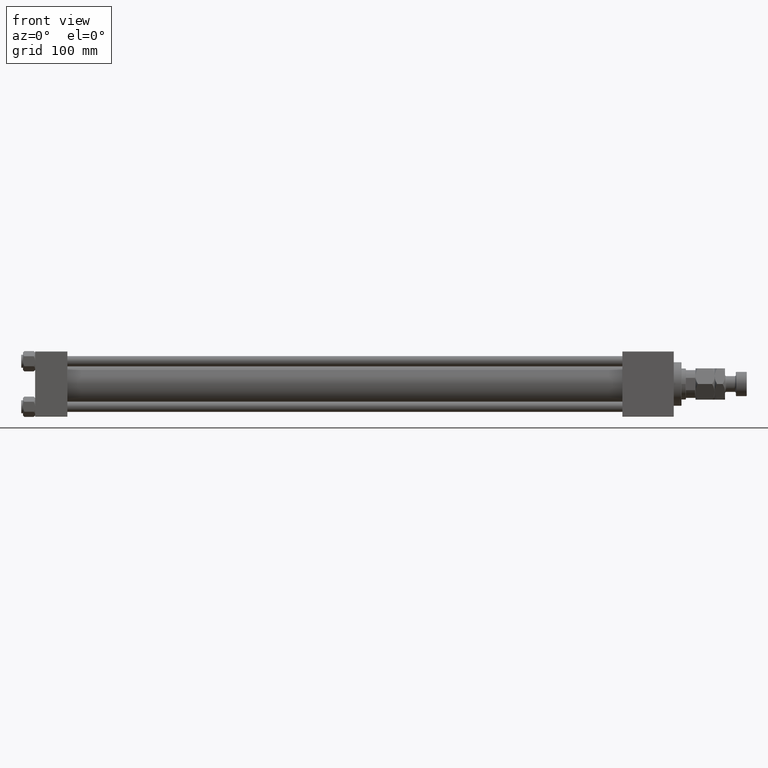
[diagram: clean part render]
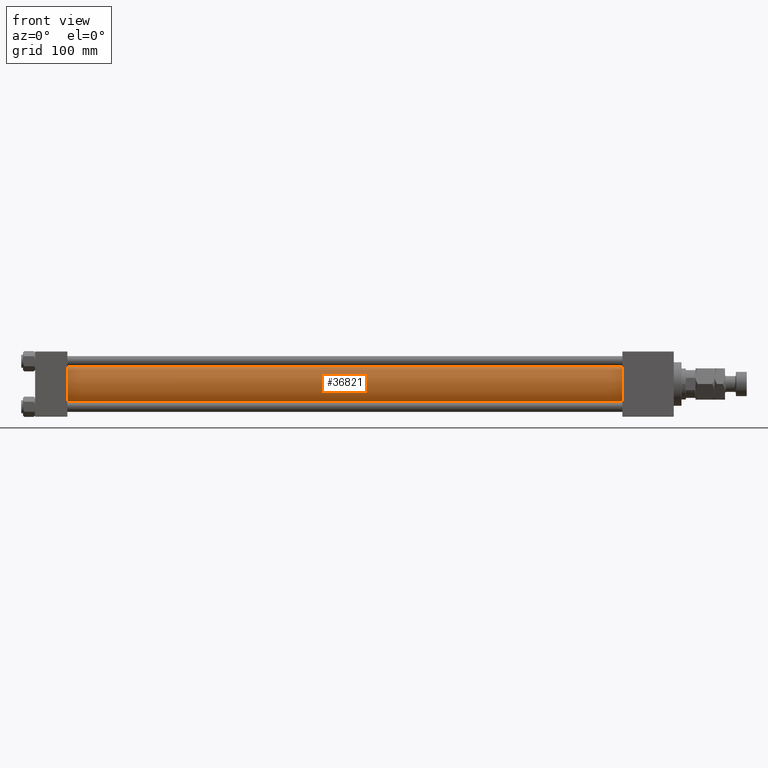
[diagram: same view with one face highlighted and labeled with its STEP entity id]
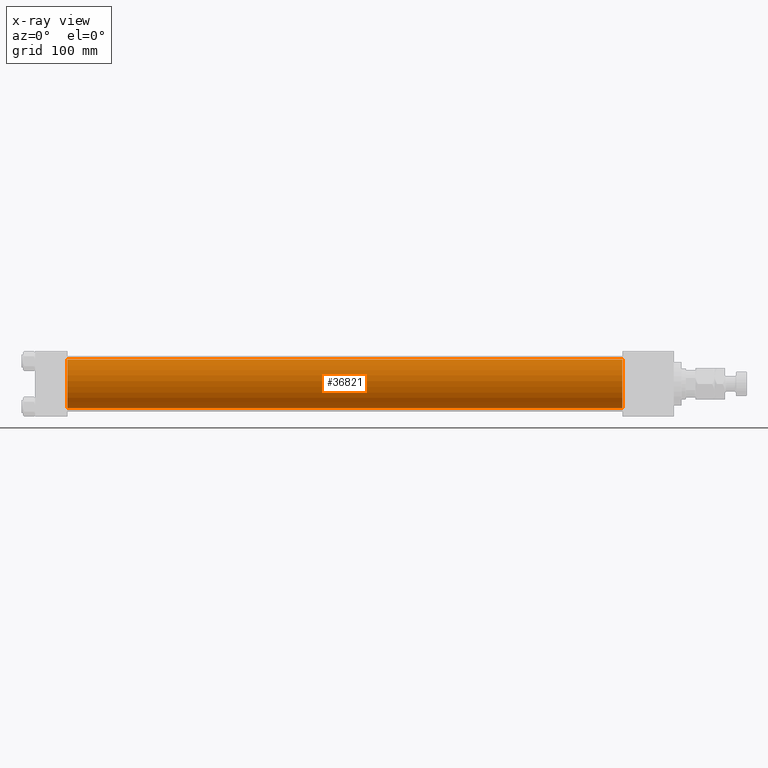
[diagram: x-ray of the same camera — body ghosted, the highlighted face saturated]
A machine part, front view. The second image highlights one B-rep face of the part: STEP entity #36821.
The next image is the same camera in x-ray: the body ghosted, the highlighted face saturated — about 0% of this face is hidden behind the body in this view.
In plain terms, the highlighted cylindrical surface (edge-blend (fillet) strip) has radius 28 mm, axis along (-1, -0, -0).
Its self-contained STEP definition (entity closure, byte-faithful):
#157 = CYLINDRICAL_SURFACE ( 'NONE', #28881, 28.00000000000000000 ) ;
#779 = VERTEX_POINT ( 'NONE', #4717 ) ;
#1077 = DIRECTION ( 'NONE',  ( -1.000000000000000000, -0.000000000000000000, -0.000000000000000000 ) ) ;
#1992 = DIRECTION ( 'NONE',  ( 0.000000000000000000, 0.000000000000000000, 1.000000000000000000 ) ) ;
#2848 = EDGE_LOOP ( 'NONE', ( #27889, #49553, #50623, #28618 ) ) ;
#4412 = CARTESIAN_POINT ( 'NONE',  ( 675.0000000000000000, -2.602085213965210642E-15, 28.00000000000000000 ) ) ;
#4717 = CARTESIAN_POINT ( 'NONE',  ( 675.0000000000000000, 8.269258236473784371E-16, -28.00000000000000000 ) ) ;
#4912 = CIRCLE ( 'NONE', #47666, 28.00000000000000000 ) ;
#8703 = LINE ( 'NONE', #8960, #41941 ) ;
#8960 = CARTESIAN_POINT ( 'NONE',  ( 675.0000000000000000, 8.269258236473784371E-16, -28.00000000000000000 ) ) ;
#10951 = DIRECTION ( 'NONE',  ( -1.000000000000000000, -0.000000000000000000, -0.000000000000000000 ) ) ;
#13303 = CARTESIAN_POINT ( 'NONE',  ( 37.00000000000003553, -2.602085213965210642E-15, 0.000000000000000000 ) ) ;
#15864 = AXIS2_PLACEMENT_3D ( 'NONE', #13303, #21949, #1992 ) ;
#16838 = LINE ( 'NONE', #37272, #48504 ) ;
#17091 = DIRECTION ( 'NONE',  ( -1.000000000000000000, -0.000000000000000000, -0.000000000000000000 ) ) ;
#17145 = DIRECTION ( 'NONE',  ( 1.000000000000000000, 0.000000000000000000, 0.000000000000000000 ) ) ;
#17795 = EDGE_CURVE ( 'NONE', #24915, #779, #4912, .T. ) ;
#18068 = EDGE_CURVE ( 'NONE', #24470, #28494, #19198, .T. ) ;
#19198 = CIRCLE ( 'NONE', #15864, 28.00000000000000000 ) ;
#21949 = DIRECTION ( 'NONE',  ( 1.000000000000000000, -0.000000000000000000, 0.000000000000000000 ) ) ;
#22233 = EDGE_CURVE ( 'NONE', #779, #28494, #8703, .T. ) ;
#23267 = FACE_OUTER_BOUND ( 'NONE', #2848, .T. ) ;
#24470 = VERTEX_POINT ( 'NONE', #46298 ) ;
#24753 = CARTESIAN_POINT ( 'NONE',  ( 675.0000000000000000, -2.602085213965210642E-15, 0.000000000000000000 ) ) ;
#24915 = VERTEX_POINT ( 'NONE', #4412 ) ;
#27722 = CARTESIAN_POINT ( 'NONE',  ( 675.0000000000000000, -2.602085213965210642E-15, 0.000000000000000000 ) ) ;
#27889 = ORIENTED_EDGE ( 'NONE', *, *, #22233, .F. ) ;
#28494 = VERTEX_POINT ( 'NONE', #47495 ) ;
#28618 = ORIENTED_EDGE ( 'NONE', *, *, #18068, .T. ) ;
#28881 = AXIS2_PLACEMENT_3D ( 'NONE', #27722, #10951, #39514 ) ;
#28949 = DIRECTION ( 'NONE',  ( 0.000000000000000000, 0.000000000000000000, -1.000000000000000000 ) ) ;
#36821 = ADVANCED_FACE ( 'NONE', ( #23267 ), #157, .T. ) ;
#37272 = CARTESIAN_POINT ( 'NONE',  ( 675.0000000000000000, -2.602085213965210642E-15, 28.00000000000000000 ) ) ;
#39514 = DIRECTION ( 'NONE',  ( 0.000000000000000000, 0.000000000000000000, 1.000000000000000000 ) ) ;
#41941 = VECTOR ( 'NONE', #1077, 1000.000000000000000 ) ;
#46298 = CARTESIAN_POINT ( 'NONE',  ( 37.00000000000003553, -2.602085213965210642E-15, 28.00000000000000000 ) ) ;
#47495 = CARTESIAN_POINT ( 'NONE',  ( 37.00000000000003553, 8.269258236473784371E-16, -28.00000000000000000 ) ) ;
#47666 = AXIS2_PLACEMENT_3D ( 'NONE', #24753, #17145, #28949 ) ;
#48504 = VECTOR ( 'NONE', #17091, 1000.000000000000000 ) ;
#49445 = EDGE_CURVE ( 'NONE', #24915, #24470, #16838, .T. ) ;
#49553 = ORIENTED_EDGE ( 'NONE', *, *, #17795, .F. ) ;
#50623 = ORIENTED_EDGE ( 'NONE', *, *, #49445, .T. ) ;